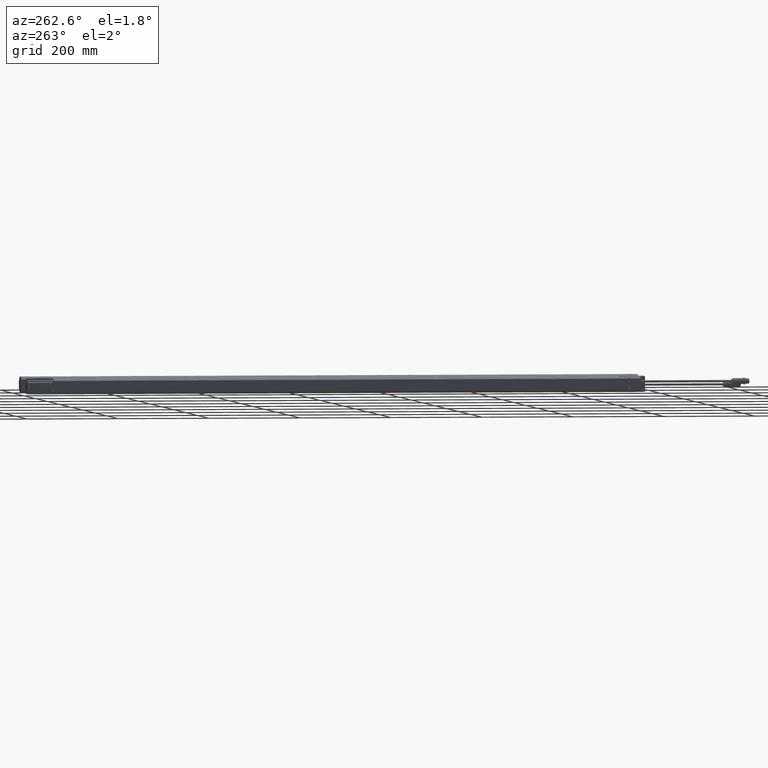
[diagram: clean part render]
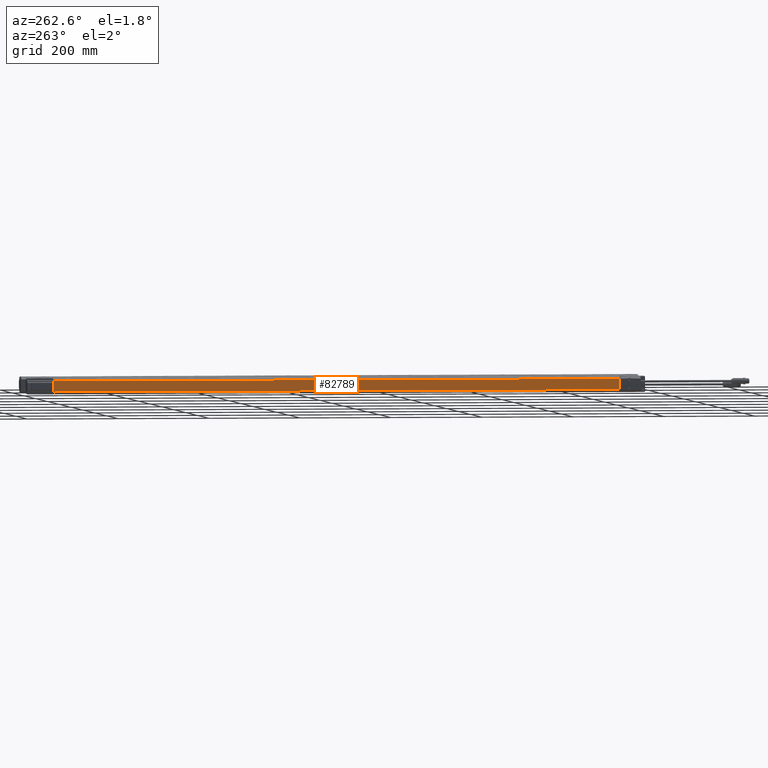
[diagram: same view with one face highlighted and labeled with its STEP entity id]
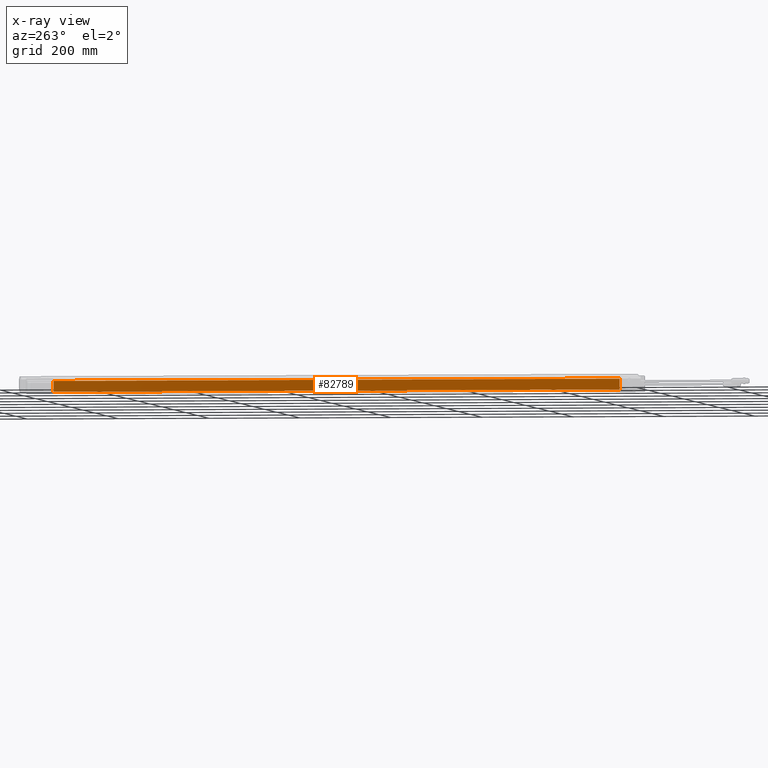
[diagram: x-ray of the same camera — body ghosted, the highlighted face saturated]
A machine part, auxiliary view. The second image highlights one B-rep face of the part: STEP entity #82789.
The next image is the same camera in x-ray: the body ghosted, the highlighted face saturated — about 0% of this face is hidden behind the body in this view.
In plain terms, the highlighted planar face has unit normal (-1, 0, 0).
Its self-contained STEP definition (entity closure, byte-faithful):
#1578 = CARTESIAN_POINT ( 'NONE',  ( -2.996062992125984259, 24.75393700787401841, -0.6889763779527796617 ) ) ;
#2573 = EDGE_CURVE ( 'NONE', #78086, #13765, #50078, .T. ) ;
#2858 = ORIENTED_EDGE ( 'NONE', *, *, #80652, .F. ) ;
#5366 = EDGE_CURVE ( 'NONE', #77728, #42892, #40786, .T. ) ;
#5836 = LINE ( 'NONE', #28563, #55223 ) ;
#5950 = VERTEX_POINT ( 'NONE', #68682 ) ;
#7341 = VECTOR ( 'NONE', #42833, 39.37007874015748143 ) ;
#7625 = CARTESIAN_POINT ( 'NONE',  ( -2.996062895803720316, -24.50944539615480622, 0.4682874105053519420 ) ) ;
#8332 = CARTESIAN_POINT ( 'NONE',  ( -2.996062992125984259, 24.38976377952756280, -0.4663514493759133295 ) ) ;
#9740 = CARTESIAN_POINT ( 'NONE',  ( -2.996062937078448396, 24.51039023344618073, -0.4682873029692323219 ) ) ;
#10792 = CARTESIAN_POINT ( 'NONE',  ( -2.996062992125984259, -24.46955152257747912, -0.4682918739283433718 ) ) ;
#12137 = DIRECTION ( 'NONE',  ( 4.377178461672026361E-20, 0.9999999936554333502, 0.0001126460530786114442 ) ) ;
#12473 = B_SPLINE_CURVE_WITH_KNOTS ( 'NONE', 3,
 ( #69847, #14107, #100774, #47115 ),
 .UNSPECIFIED., .F., .F.,
 ( 4, 4 ),
 ( 0.000000000000000000, 1.000000000000000000 ),
 .UNSPECIFIED. ) ;
#12498 = CARTESIAN_POINT ( 'NONE',  ( -2.996062992125984259, 105.5314960629921188, -0.4663514493759889357 ) ) ;
#12949 = CARTESIAN_POINT ( 'NONE',  ( -2.996062653574303347, 24.38976378928858679, 0.4683009132287662135 ) ) ;
#13765 = VERTEX_POINT ( 'NONE', #100544 ) ;
#14025 = LINE ( 'NONE', #77482, #80027 ) ;
#14107 = CARTESIAN_POINT ( 'NONE',  ( -2.996062992125984259, 24.42997259706496394, 0.4682963610002795485 ) ) ;
#18727 = ORIENTED_EDGE ( 'NONE', *, *, #41422, .T. ) ;
#20345 = CARTESIAN_POINT ( 'NONE',  ( -2.996062992125984259, -24.38976377952756280, 0.4663514493759109980 ) ) ;
#21619 = ORIENTED_EDGE ( 'NONE', *, *, #32275, .T. ) ;
#24043 = VERTEX_POINT ( 'NONE', #100728 ) ;
#24456 = LINE ( 'NONE', #87928, #51479 ) ;
#25154 = LINE ( 'NONE', #64892, #44111 ) ;
#25315 = DIRECTION ( 'NONE',  ( 0.000000000000000000, 0.000000000000000000, 1.000000000000000000 ) ) ;
#28563 = CARTESIAN_POINT ( 'NONE',  ( -2.996062992125984259, 24.51039023328621980, -0.6889763779527796617 ) ) ;
#28751 = ORIENTED_EDGE ( 'NONE', *, *, #43364, .T. ) ;
#29236 = CARTESIAN_POINT ( 'NONE',  ( -2.996062653739421044, 24.38976377952756280, -0.4676510190787535604 ) ) ;
#31337 = CARTESIAN_POINT ( 'NONE',  ( -2.996062653739421044, 24.38976377952756280, 0.4676510919259102561 ) ) ;
#32168 = CARTESIAN_POINT ( 'NONE',  ( -2.996062992125984259, -24.38976377952756280, -0.4663514493758676993 ) ) ;
#32212 = CARTESIAN_POINT ( 'NONE',  ( -2.996062992125984259, -24.38976377952756280, 0.6889763779527776633 ) ) ;
#32275 = EDGE_CURVE ( 'NONE', #32522, #67444, #84326, .T. ) ;
#32522 = VERTEX_POINT ( 'NONE', #32168 ) ;
#33061 = DIRECTION ( 'NONE',  ( -1.000000000000000000, 0.000000000000000000, 0.000000000000000000 ) ) ;
#34706 = VERTEX_POINT ( 'NONE', #20345 ) ;
#34845 = DIRECTION ( 'NONE',  ( -3.885780586188049864E-16, -9.330999788449910017E-16, -1.000000000000000000 ) ) ;
#35661 = VECTOR ( 'NONE', #49845, 39.37007874015748143 ) ;
#36552 = ORIENTED_EDGE ( 'NONE', *, *, #5366, .F. ) ;
#36784 = EDGE_CURVE ( 'NONE', #24043, #77954, #24456, .T. ) ;
#37255 = DIRECTION ( 'NONE',  ( 0.000000000000000000, -1.000000000000000000, 9.330999788449910017E-16 ) ) ;
#38269 = DIRECTION ( 'NONE',  ( 0.000000000000000000, -0.9999999937365373626, -0.0001119237481296358295 ) ) ;
#38916 = DIRECTION ( 'NONE',  ( 0.000000000000000000, -9.330999788449910017E-16, -1.000000000000000000 ) ) ;
#40786 = B_SPLINE_CURVE_WITH_KNOTS ( 'NONE', 3,
 ( #70594, #31337, #55617, #87062 ),
 .UNSPECIFIED., .F., .F.,
 ( 4, 4 ),
 ( 0.000000000000000000, 0.002081422433260554910 ),
 .UNSPECIFIED. ) ;
#41422 = EDGE_CURVE ( 'NONE', #78086, #59631, #66858, .T. ) ;
#42302 = CARTESIAN_POINT ( 'NONE',  ( -2.996062992125984259, 24.51039023305684950, 0.3189601074669078939 ) ) ;
#42833 = DIRECTION ( 'NONE',  ( -2.959116022386649526E-20, -9.364907899508040840E-16, -1.000000000000000000 ) ) ;
#42892 = VERTEX_POINT ( 'NONE', #53028 ) ;
#43364 = EDGE_CURVE ( 'NONE', #59631, #34706, #79163, .T. ) ;
#44111 = VECTOR ( 'NONE', #47351, 39.37007874015748143 ) ;
#44119 = CARTESIAN_POINT ( 'NONE',  ( -2.996062992125984259, -24.50944539554346591, 0.4682874105001755827 ) ) ;
#44573 = VECTOR ( 'NONE', #12137, 39.37007874015748854 ) ;
#45099 = CARTESIAN_POINT ( 'NONE',  ( -2.996062992125984259, -24.38976377952756280, 0.6889763779527776633 ) ) ;
#47115 = CARTESIAN_POINT ( 'NONE',  ( -2.996063117458539260, 24.51039023208751644, 0.4682872565978637991 ) ) ;
#47157 = EDGE_CURVE ( 'NONE', #101059, #5950, #14025, .T. ) ;
#47351 = DIRECTION ( 'NONE',  ( 0.000000000000000000, 1.000000000000000000, -9.330999788449910017E-16 ) ) ;
#48077 = ORIENTED_EDGE ( 'NONE', *, *, #96266, .T. ) ;
#48547 = FACE_OUTER_BOUND ( 'NONE', #101064, .T. ) ;
#49845 = DIRECTION ( 'NONE',  ( 0.000000000000000000, -9.330999788449910017E-16, -1.000000000000000000 ) ) ;
#50078 = LINE ( 'NONE', #81522, #7341 ) ;
#50836 = CARTESIAN_POINT ( 'NONE',  ( -2.996062992125984259, 24.51039023328621980, -0.6889763779527796617 ) ) ;
#51479 = VECTOR ( 'NONE', #38916, 39.37007874015748143 ) ;
#51481 = CARTESIAN_POINT ( 'NONE',  ( -2.996062653739421044, 24.38976377952756280, -0.4670012342273330841 ) ) ;
#51547 = ORIENTED_EDGE ( 'NONE', *, *, #36784, .T. ) ;
#51735 = LINE ( 'NONE', #12498, #98659 ) ;
#52509 = CARTESIAN_POINT ( 'NONE',  ( -2.996062661528834603, -24.38976378928669675, -0.4683009132248890372 ) ) ;
#53028 = CARTESIAN_POINT ( 'NONE',  ( -2.996062992125984259, 24.38976377952756280, 0.4663514493758661450 ) ) ;
#53824 = DIRECTION ( 'NONE',  ( 0.000000000000000000, -9.330999788449910017E-16, -1.000000000000000000 ) ) ;
#54109 = VERTEX_POINT ( 'NONE', #8332 ) ;
#55223 = VECTOR ( 'NONE', #53824, 39.37007874015748143 ) ;
#55617 = CARTESIAN_POINT ( 'NONE',  ( -2.996062653739421044, 24.38976377952756280, 0.4670012706508882561 ) ) ;
#55918 = ORIENTED_EDGE ( 'NONE', *, *, #69779, .T. ) ;
#56011 = B_SPLINE_CURVE_WITH_KNOTS ( 'NONE', 3,
 ( #89754, #74285, #10792, #59818 ),
 .UNSPECIFIED., .F., .F.,
 ( 4, 4 ),
 ( 0.000000000000000000, 1.000000000000000000 ),
 .UNSPECIFIED. ) ;
#57677 = VECTOR ( 'NONE', #79691, 39.37007874015748143 ) ;
#59242 = CARTESIAN_POINT ( 'NONE',  ( -2.996062827379870175, 24.38976377952756280, -0.4683008039302133940 ) ) ;
#59631 = VERTEX_POINT ( 'NONE', #100725 ) ;
#59818 = CARTESIAN_POINT ( 'NONE',  ( -2.996063138490189015, -24.50944539410192746, -0.4682873542943543632 ) ) ;
#61373 = ORIENTED_EDGE ( 'NONE', *, *, #84460, .T. ) ;
#64892 = CARTESIAN_POINT ( 'NONE',  ( -2.996062992125984259, 105.5314960629921188, 0.4663514493757897061 ) ) ;
#66858 = LINE ( 'NONE', #44119, #44573 ) ;
#67444 = VERTEX_POINT ( 'NONE', #52509 ) ;
#68159 = ORIENTED_EDGE ( 'NONE', *, *, #100419, .T. ) ;
#68682 = CARTESIAN_POINT ( 'NONE',  ( -2.996062827379870175, 24.38976377952756280, -0.4683008039302133940 ) ) ;
#69779 = EDGE_CURVE ( 'NONE', #67444, #13765, #56011, .T. ) ;
#69847 = CARTESIAN_POINT ( 'NONE',  ( -2.996062653574303347, 24.38976378928858679, 0.4683009132287662135 ) ) ;
#70261 = B_SPLINE_CURVE_WITH_KNOTS ( 'NONE', 3,
 ( #75720, #51481, #29236, #59242 ),
 .UNSPECIFIED., .F., .F.,
 ( 4, 4 ),
 ( 0.9979186942340539934, 1.000000000000000000 ),
 .UNSPECIFIED. ) ;
#70594 = CARTESIAN_POINT ( 'NONE',  ( -2.996062653574303347, 24.38976378928858679, 0.4683009132287662135 ) ) ;
#72294 = PLANE ( 'NONE',  #98093 ) ;
#74285 = CARTESIAN_POINT ( 'NONE',  ( -2.996062992125984259, -24.42965765105252274, -0.4682963935639015696 ) ) ;
#75720 = CARTESIAN_POINT ( 'NONE',  ( -2.996062992125984259, 24.38976377952756280, -0.4663514493759133295 ) ) ;
#77482 = CARTESIAN_POINT ( 'NONE',  ( -2.996062992125984259, 24.51039023360629798, -0.4682873029652244168 ) ) ;
#77728 = VERTEX_POINT ( 'NONE', #12949 ) ;
#77954 = VERTEX_POINT ( 'NONE', #42302 ) ;
#78086 = VERTEX_POINT ( 'NONE', #7625 ) ;
#79163 = LINE ( 'NONE', #32212, #57677 ) ;
#79348 = EDGE_CURVE ( 'NONE', #77728, #24043, #12473, .T. ) ;
#79603 = ORIENTED_EDGE ( 'NONE', *, *, #79348, .T. ) ;
#79691 = DIRECTION ( 'NONE',  ( -3.885780586188049864E-16, -9.330999788449910017E-16, -1.000000000000000000 ) ) ;
#80027 = VECTOR ( 'NONE', #38269, 39.37007874015748854 ) ;
#80652 = EDGE_CURVE ( 'NONE', #54109, #5950, #70261, .T. ) ;
#80950 = VECTOR ( 'NONE', #34845, 39.37007874015748143 ) ;
#81286 = LINE ( 'NONE', #50836, #35661 ) ;
#81522 = CARTESIAN_POINT ( 'NONE',  ( -2.996062957099704605, -24.50944539554346591, -0.6003937007873799692 ) ) ;
#82789 = ADVANCED_FACE ( 'NONE', ( #48547 ), #72294, .T. ) ;
#83014 = ORIENTED_EDGE ( 'NONE', *, *, #47157, .T. ) ;
#84326 = LINE ( 'NONE', #45099, #80950 ) ;
#84460 = EDGE_CURVE ( 'NONE', #96258, #101059, #5836, .T. ) ;
#87062 = CARTESIAN_POINT ( 'NONE',  ( -2.996062992125984259, 24.38976377952756280, 0.4663514493758661450 ) ) ;
#87928 = CARTESIAN_POINT ( 'NONE',  ( -2.996062992125984259, 24.51039023213976265, -0.6889763779527796617 ) ) ;
#89546 = CARTESIAN_POINT ( 'NONE',  ( -2.996062984786291405, 24.51039023335019351, -0.3189601078514165966 ) ) ;
#89754 = CARTESIAN_POINT ( 'NONE',  ( -2.996062661528834603, -24.38976378928669675, -0.4683009132248890372 ) ) ;
#94200 = ORIENTED_EDGE ( 'NONE', *, *, #2573, .F. ) ;
#96032 = ORIENTED_EDGE ( 'NONE', *, *, #101518, .T. ) ;
#96258 = VERTEX_POINT ( 'NONE', #89546 ) ;
#96266 = EDGE_CURVE ( 'NONE', #77954, #96258, #81286, .T. ) ;
#98093 = AXIS2_PLACEMENT_3D ( 'NONE', #1578, #33061, #25315 ) ;
#98659 = VECTOR ( 'NONE', #37255, 39.37007874015748143 ) ;
#100419 = EDGE_CURVE ( 'NONE', #34706, #42892, #25154, .T. ) ;
#100544 = CARTESIAN_POINT ( 'NONE',  ( -2.996063138490189015, -24.50944539410192746, -0.4682873542943543632 ) ) ;
#100725 = CARTESIAN_POINT ( 'NONE',  ( -2.996063005481129693, -24.38976377952756280, 0.4683008921620527842 ) ) ;
#100728 = CARTESIAN_POINT ( 'NONE',  ( -2.996063117458539260, 24.51039023208751644, 0.4682872565978637991 ) ) ;
#100774 = CARTESIAN_POINT ( 'NONE',  ( -2.996062992125984259, 24.47018141460236151, 0.4682918087985118993 ) ) ;
#101059 = VERTEX_POINT ( 'NONE', #9740 ) ;
#101064 = EDGE_LOOP ( 'NONE', ( #61373, #83014, #2858, #96032, #21619, #55918, #94200, #18727, #28751, #68159, #36552, #79603, #51547, #48077 ) ) ;
#101518 = EDGE_CURVE ( 'NONE', #54109, #32522, #51735, .T. ) ;